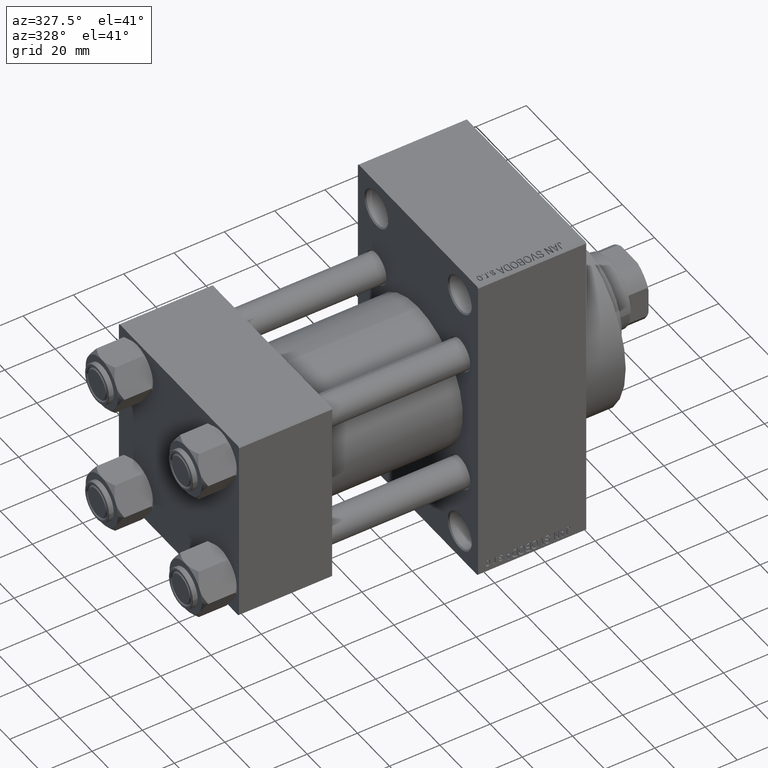
[diagram: clean part render]
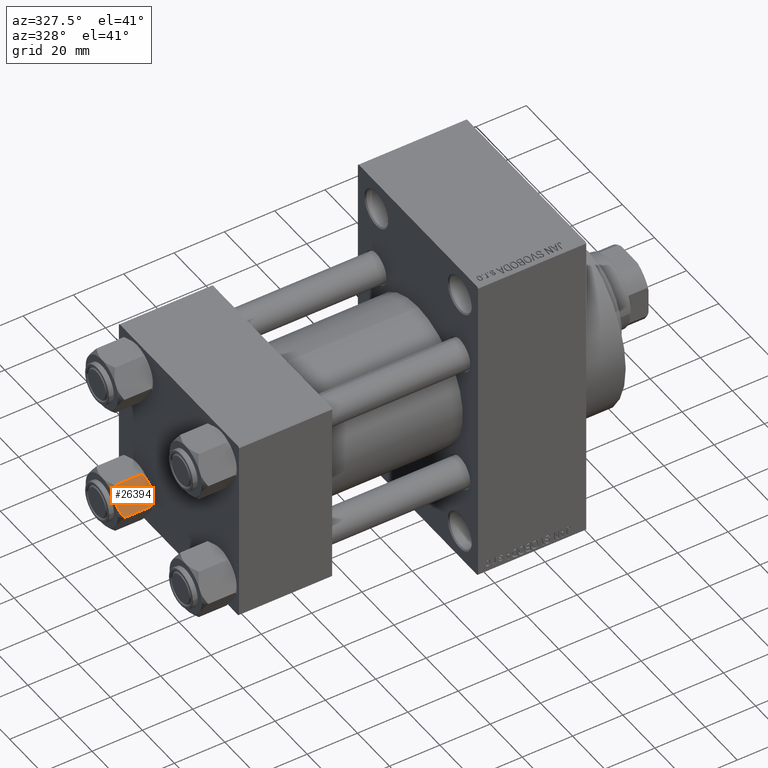
[diagram: same view with one face highlighted and labeled with its STEP entity id]
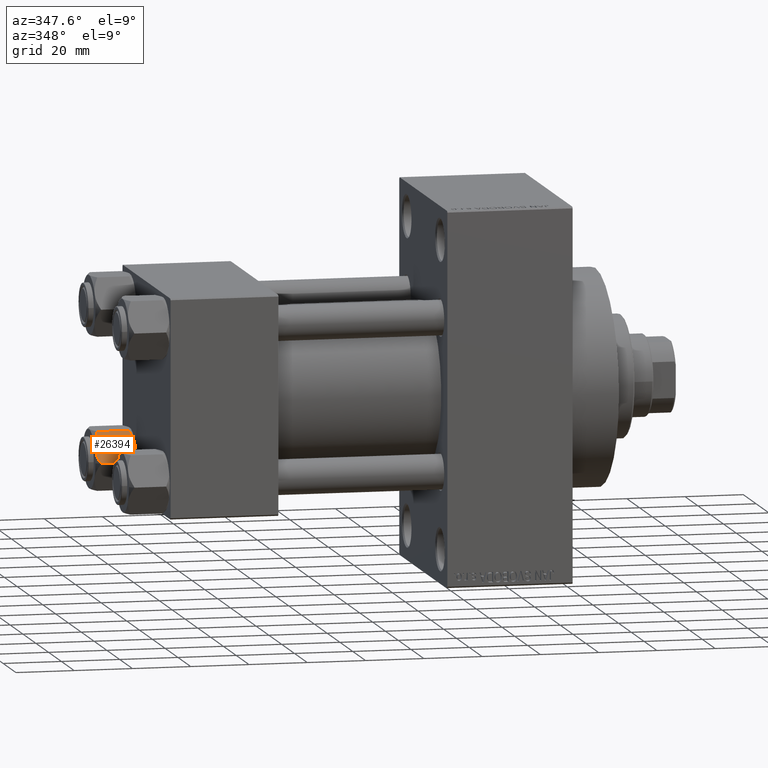
[diagram: same view with one face highlighted and labeled with its STEP entity id]
A machine part, auxiliary view. The second image highlights one B-rep face of the part: STEP entity #26394.
A second angle (auxiliary view) of the same face is appended — the face is thin or edge-on in the first view.
In plain terms, the highlighted planar face has unit normal (-0, 0.866, -0.5).
Its self-contained STEP definition (entity closure, byte-faithful):
#210 = ORIENTED_EDGE ( 'NONE', *, *, #30480, .F. ) ;
#2131 = CARTESIAN_POINT ( 'NONE',  ( 6.265018354709773973, 9.275100283241448196, -1.101766453314953154 ) ) ;
#2711 = B_SPLINE_CURVE_WITH_KNOTS ( 'NONE', 3,
 ( #30238, #4709, #15433, #15675, #30958, #8272, #44589, #19960 ),
 .UNSPECIFIED., .F., .F.,
 ( 4, 2, 2, 4 ),
 ( 2.544312114903581015E-07, 0.003011550106433540791, 0.004517197944044564449, 0.006022845781655588107 ),
 .UNSPECIFIED. ) ;
#3115 = CARTESIAN_POINT ( 'NONE',  ( 11.62000000000000099, -1.689012838886770227E-15, -12.44321519197518633 ) ) ;
#3291 = ORIENTED_EDGE ( 'NONE', *, *, #43863, .F. ) ;
#4145 = B_SPLINE_CURVE_WITH_KNOTS ( 'NONE', 3,
 ( #31977, #14306, #10492, #32215, #35805, #3115 ),
 .UNSPECIFIED., .F., .F.,
 ( 4, 2, 4 ),
 ( 0.006022845781655592444, 0.009013049135303636758, 0.01200325248895168194 ),
 .UNSPECIFIED. ) ;
#4709 = CARTESIAN_POINT ( 'NONE',  ( 11.16445427487472131, 0.7890283410877956261, -1.101239082899531985 ) ) ;
#5235 = CARTESIAN_POINT ( 'NONE',  ( 8.715000000000005187, 5.031607595987590109, 0.000000000000000000 ) ) ;
#5261 = CARTESIAN_POINT ( 'NONE',  ( 8.460569896449618099, 5.472293462311861312, -14.00000000000000000 ) ) ;
#5703 = CARTESIAN_POINT ( 'NONE',  ( 6.733375043383499126, 8.463882702393844326, -0.7114554706434494946 ) ) ;
#5933 = ORIENTED_EDGE ( 'NONE', *, *, #44069, .F. ) ;
#5995 = CARTESIAN_POINT ( 'NONE',  ( 8.715000000000005187, 5.031607595987590109, -14.00000000000000000 ) ) ;
#6258 = LINE ( 'NONE', #39694, #19927 ) ;
#6987 = EDGE_CURVE ( 'NONE', #15302, #19701, #11918, .T. ) ;
#8272 = CARTESIAN_POINT ( 'NONE',  ( 9.227666995912102266, 4.143642311704121894, -0.03994118060690670519 ) ) ;
#8591 = CARTESIAN_POINT ( 'NONE',  ( 6.731401448974991375, 8.467301068182917945, -13.28585617404753627 ) ) ;
#8827 = CARTESIAN_POINT ( 'NONE',  ( 8.202333004087901003, 5.919572880271053883, -13.96005881939309567 ) ) ;
#9855 = DIRECTION ( 'NONE',  ( 0.4999999999999998335, -0.8660254037844387076, 0.000000000000000000 ) ) ;
#10492 = CARTESIAN_POINT ( 'NONE',  ( 9.716999946243698005, 3.296092779912226156, -13.84547602999602134 ) ) ;
#11692 = B_SPLINE_CURVE_WITH_KNOTS ( 'NONE', 3,
 ( #44900, #33664, #8591, #37730, #34137, #8827, #5261, #19809 ),
 .UNSPECIFIED., .F., .F.,
 ( 4, 2, 2, 4 ),
 ( 2.544312114902182352E-07, 0.003011550106433542526, 0.004517197944044567919, 0.006022845781655592444 ),
 .UNSPECIFIED. ) ;
#11868 = ORIENTED_EDGE ( 'NONE', *, *, #15606, .F. ) ;
#11918 = LINE ( 'NONE', #36516, #42089 ) ;
#12669 = B_SPLINE_CURVE_WITH_KNOTS ( 'NONE', 3,
 ( #5235, #34819, #23828, #5703, #2131, #34346 ),
 .UNSPECIFIED., .F., .F.,
 ( 4, 2, 4 ),
 ( 0.006022845781655588107, 0.009013049135303636758, 0.01200325248895168367 ),
 .UNSPECIFIED. ) ;
#13998 = CARTESIAN_POINT ( 'NONE',  ( 5.810000000000000497, 10.06321519197518022, -1.556784808024815892 ) ) ;
#14306 = CARTESIAN_POINT ( 'NONE',  ( 9.220295946303432189, 4.156409344131451356, -14.00000000000000178 ) ) ;
#15302 = VERTEX_POINT ( 'NONE', #32756 ) ;
#15433 = CARTESIAN_POINT ( 'NONE',  ( 10.69859855102501278, 1.595914123792262718, -0.7141438259524649501 ) ) ;
#15606 = EDGE_CURVE ( 'NONE', #39846, #32953, #2711, .T. ) ;
#15675 = CARTESIAN_POINT ( 'NONE',  ( 9.974696630283190757, 2.849749030213792000, -0.3002673809867367205 ) ) ;
#15894 = ORIENTED_EDGE ( 'NONE', *, *, #6987, .T. ) ;
#16093 = CARTESIAN_POINT ( 'NONE',  ( 5.810000000000000497, 10.06321519197518022, -14.00000000000000000 ) ) ;
#19666 = FACE_OUTER_BOUND ( 'NONE', #47173, .T. ) ;
#19701 = VERTEX_POINT ( 'NONE', #13998 ) ;
#19809 = CARTESIAN_POINT ( 'NONE',  ( 8.715000000000005187, 5.031607595987590109, -14.00000000000000000 ) ) ;
#19927 = VECTOR ( 'NONE', #47096, 1000.000000000000000 ) ;
#19960 = CARTESIAN_POINT ( 'NONE',  ( 8.715000000000005187, 5.031607595987590109, 0.000000000000000000 ) ) ;
#21373 = CARTESIAN_POINT ( 'NONE',  ( 11.62000000000000099, -1.924525737834042474E-15, -1.556784808024813893 ) ) ;
#23485 = DIRECTION ( 'NONE',  ( -0.8660254037844387076, -0.4999999999999998335, 0.000000000000000000 ) ) ;
#23828 = CARTESIAN_POINT ( 'NONE',  ( 7.713000053756307928, 6.767122412062951398, -0.1545239700039825748 ) ) ;
#25270 = VERTEX_POINT ( 'NONE', #34384 ) ;
#26394 = ADVANCED_FACE ( 'NONE', ( #19666 ), #34230, .F. ) ;
#27160 = ORIENTED_EDGE ( 'NONE', *, *, #37163, .F. ) ;
#27184 = CARTESIAN_POINT ( 'NONE',  ( 8.715000000000005187, 5.031607595987590109, 0.000000000000000000 ) ) ;
#29445 = VERTEX_POINT ( 'NONE', #5995 ) ;
#30238 = CARTESIAN_POINT ( 'NONE',  ( 11.62000000000000099, -1.924525737834042474E-15, -1.556784808024813893 ) ) ;
#30480 = EDGE_CURVE ( 'NONE', #15302, #29445, #11692, .T. ) ;
#30958 = CARTESIAN_POINT ( 'NONE',  ( 9.729165168613654657, 3.275021996682081493, -0.1903979688073405840 ) ) ;
#31977 = CARTESIAN_POINT ( 'NONE',  ( 8.715000000000005187, 5.031607595987590109, -14.00000000000000000 ) ) ;
#32215 = CARTESIAN_POINT ( 'NONE',  ( 10.69662495661650503, 1.599332489581333672, -13.28854452935655139 ) ) ;
#32756 = CARTESIAN_POINT ( 'NONE',  ( 5.810000000000000497, 10.06321519197518022, -12.44321519197518455 ) ) ;
#32953 = VERTEX_POINT ( 'NONE', #27184 ) ;
#33664 = CARTESIAN_POINT ( 'NONE',  ( 6.265545725125286403, 9.274186850887383926, -12.89876091710046957 ) ) ;
#34137 = CARTESIAN_POINT ( 'NONE',  ( 7.700834831386345058, 6.788193195293094284, -13.80960203119265906 ) ) ;
#34230 = PLANE ( 'NONE',  #41054 ) ;
#34346 = CARTESIAN_POINT ( 'NONE',  ( 5.810000000000000497, 10.06321519197518022, -1.556784808024815892 ) ) ;
#34384 = CARTESIAN_POINT ( 'NONE',  ( 11.62000000000000099, -1.689012838886770227E-15, -12.44321519197518633 ) ) ;
#34819 = CARTESIAN_POINT ( 'NONE',  ( 8.209704053696576409, 5.906805847843727086, 3.430483436379916373E-15 ) ) ;
#35805 = CARTESIAN_POINT ( 'NONE',  ( 11.16498164529022574, 0.7881149087337292469, -12.89823354668504862 ) ) ;
#36516 = CARTESIAN_POINT ( 'NONE',  ( 5.810000000000000497, 10.06321519197518022, -14.00000000000000000 ) ) ;
#37163 = EDGE_CURVE ( 'NONE', #25270, #39846, #6258, .T. ) ;
#37730 = CARTESIAN_POINT ( 'NONE',  ( 7.455303369716807182, 7.213466161761384221, -13.69973261901325934 ) ) ;
#39694 = CARTESIAN_POINT ( 'NONE',  ( 11.62000000000000099, -1.813166800014576593E-15, -14.00000000000000000 ) ) ;
#39846 = VERTEX_POINT ( 'NONE', #21373 ) ;
#40838 = DIRECTION ( 'NONE',  ( -0.000000000000000000, -0.000000000000000000, 1.000000000000000000 ) ) ;
#41054 = AXIS2_PLACEMENT_3D ( 'NONE', #16093, #23485, #9855 ) ;
#42089 = VECTOR ( 'NONE', #40838, 1000.000000000000000 ) ;
#43863 = EDGE_CURVE ( 'NONE', #29445, #25270, #4145, .T. ) ;
#44069 = EDGE_CURVE ( 'NONE', #32953, #19701, #12669, .T. ) ;
#44589 = CARTESIAN_POINT ( 'NONE',  ( 8.969430103550381617, 4.590921729663312689, 3.523657060577888622E-15 ) ) ;
#44900 = CARTESIAN_POINT ( 'NONE',  ( 5.810000000000000497, 10.06321519197518022, -12.44321519197518455 ) ) ;
#47096 = DIRECTION ( 'NONE',  ( -0.000000000000000000, -0.000000000000000000, 1.000000000000000000 ) ) ;
#47173 = EDGE_LOOP ( 'NONE', ( #210, #15894, #5933, #11868, #27160, #3291 ) ) ;